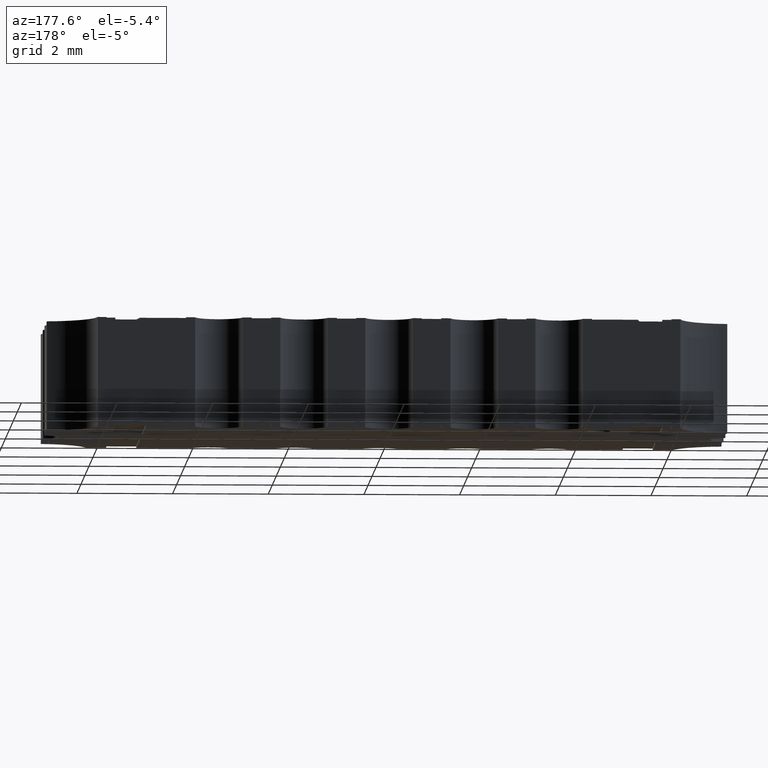
[diagram: clean part render]
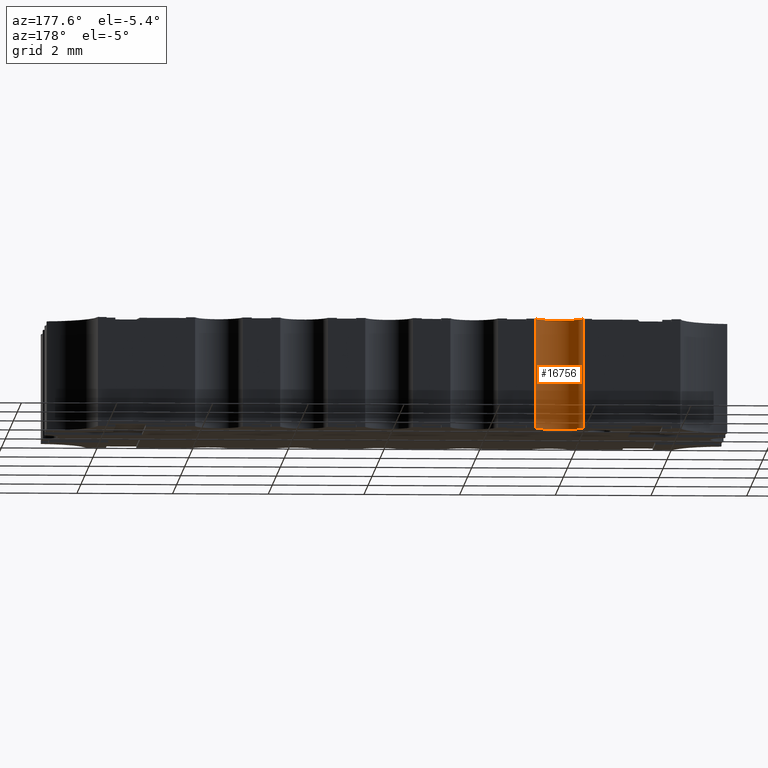
[diagram: same view with one face highlighted and labeled with its STEP entity id]
A machine part, auxiliary view. The second image highlights one B-rep face of the part: STEP entity #16756.
In plain terms, the highlighted cylindrical surface (edge-blend (fillet) strip) has radius 0.508 mm, axis along (-0, -0, -1).
Its self-contained STEP definition (entity closure, byte-faithful):
#319 = VECTOR ( 'NONE', #18942, 39.37007874015748143 ) ;
#607 = CIRCLE ( 'NONE', #7700, 0.02000000000000011144 ) ;
#1245 = DIRECTION ( 'NONE',  ( -0.000000000000000000, -0.000000000000000000, -1.000000000000000000 ) ) ;
#3946 = ORIENTED_EDGE ( 'NONE', *, *, #4348, .T. ) ;
#4348 = EDGE_CURVE ( 'NONE', #6842, #13043, #18247, .T. ) ;
#4715 = EDGE_LOOP ( 'NONE', ( #13852, #14487, #15772, #3946 ) ) ;
#4745 = LINE ( 'NONE', #11855, #319 ) ;
#5064 = CARTESIAN_POINT ( 'NONE',  ( -0.1204009703256234270, 0.09999999999995007327, 0.09000000000000001055 ) ) ;
#6365 = FACE_OUTER_BOUND ( 'NONE', #4715, .T. ) ;
#6594 = DIRECTION ( 'NONE',  ( -0.000000000000000000, -0.000000000000000000, -1.000000000000000000 ) ) ;
#6708 = CARTESIAN_POINT ( 'NONE',  ( -0.1399968882675983184, 0.1040000000013738130, 0.000000000000000000 ) ) ;
#6842 = VERTEX_POINT ( 'NONE', #5064 ) ;
#7700 = AXIS2_PLACEMENT_3D ( 'NONE', #6708, #6594, #14154 ) ;
#9292 = DIRECTION ( 'NONE',  ( -0.000000000000000000, -0.000000000000000000, -1.000000000000000000 ) ) ;
#10773 = CIRCLE ( 'NONE', #20790, 0.02000000000000011144 ) ;
#11355 = EDGE_CURVE ( 'NONE', #18970, #6842, #10773, .T. ) ;
#11581 = CARTESIAN_POINT ( 'NONE',  ( -0.1595928062095732236, 0.09999999999995007327, 0.000000000000000000 ) ) ;
#11855 = CARTESIAN_POINT ( 'NONE',  ( -0.1595928062095732236, 0.09999999999995007327, 0.002000000000000000042 ) ) ;
#11928 = EDGE_CURVE ( 'NONE', #18970, #14818, #4745, .T. ) ;
#13043 = VERTEX_POINT ( 'NONE', #15346 ) ;
#13471 = CYLINDRICAL_SURFACE ( 'NONE', #19059, 0.02000000000000009409 ) ;
#13852 = ORIENTED_EDGE ( 'NONE', *, *, #20631, .T. ) ;
#14026 = DIRECTION ( 'NONE',  ( 0.000000000000000000, 0.000000000000000000, 1.000000000000000000 ) ) ;
#14154 = DIRECTION ( 'NONE',  ( 1.000000000000000000, 0.000000000000000000, 0.000000000000000000 ) ) ;
#14487 = ORIENTED_EDGE ( 'NONE', *, *, #11928, .F. ) ;
#14818 = VERTEX_POINT ( 'NONE', #11581 ) ;
#15346 = CARTESIAN_POINT ( 'NONE',  ( -0.1204009703256233993, 0.09999999999995007327, 0.000000000000000000 ) ) ;
#15772 = ORIENTED_EDGE ( 'NONE', *, *, #11355, .T. ) ;
#16126 = DIRECTION ( 'NONE',  ( 1.000000000000000000, 0.000000000000000000, 0.000000000000000000 ) ) ;
#16262 = VECTOR ( 'NONE', #9292, 39.37007874015748143 ) ;
#16738 = DIRECTION ( 'NONE',  ( -1.000000000000000000, 0.000000000000000000, 0.000000000000000000 ) ) ;
#16756 = ADVANCED_FACE ( 'NONE', ( #6365 ), #13471, .F. ) ;
#18247 = LINE ( 'NONE', #19763, #16262 ) ;
#18942 = DIRECTION ( 'NONE',  ( -0.000000000000000000, -0.000000000000000000, -1.000000000000000000 ) ) ;
#18970 = VERTEX_POINT ( 'NONE', #21873 ) ;
#19059 = AXIS2_PLACEMENT_3D ( 'NONE', #20566, #1245, #16738 ) ;
#19763 = CARTESIAN_POINT ( 'NONE',  ( -0.1204009703256233993, 0.09999999999995007327, 0.002000000000000000042 ) ) ;
#20566 = CARTESIAN_POINT ( 'NONE',  ( -0.1399968882675983184, 0.1040000000013738130, 0.002000000000000000042 ) ) ;
#20631 = EDGE_CURVE ( 'NONE', #13043, #14818, #607, .T. ) ;
#20790 = AXIS2_PLACEMENT_3D ( 'NONE', #21349, #14026, #16126 ) ;
#21349 = CARTESIAN_POINT ( 'NONE',  ( -0.1399968882675983184, 0.1040000000013738130, 0.09000000000000001055 ) ) ;
#21873 = CARTESIAN_POINT ( 'NONE',  ( -0.1595928062095732236, 0.09999999999995007327, 0.09000000000000001055 ) ) ;